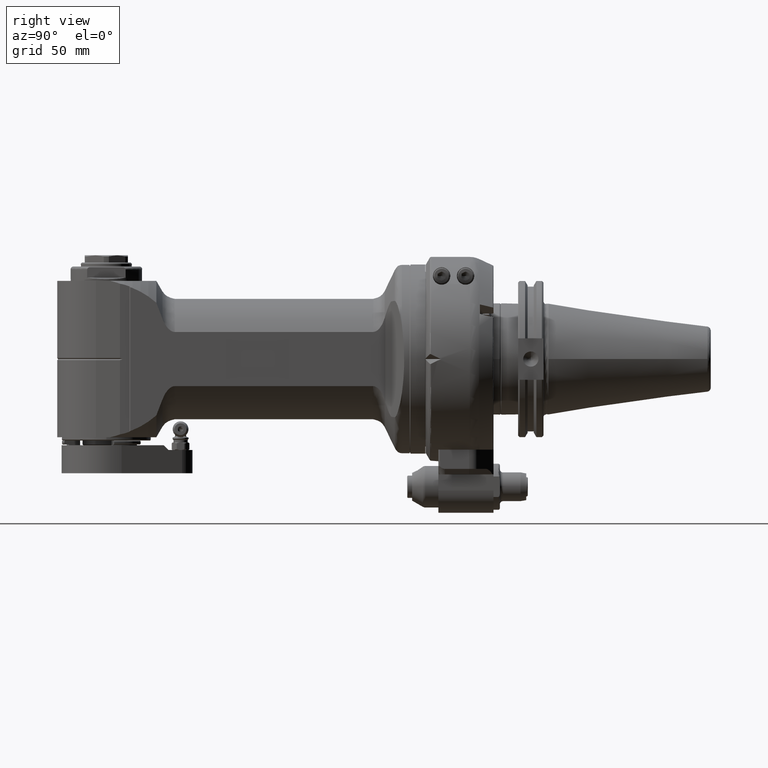
[diagram: clean part render]
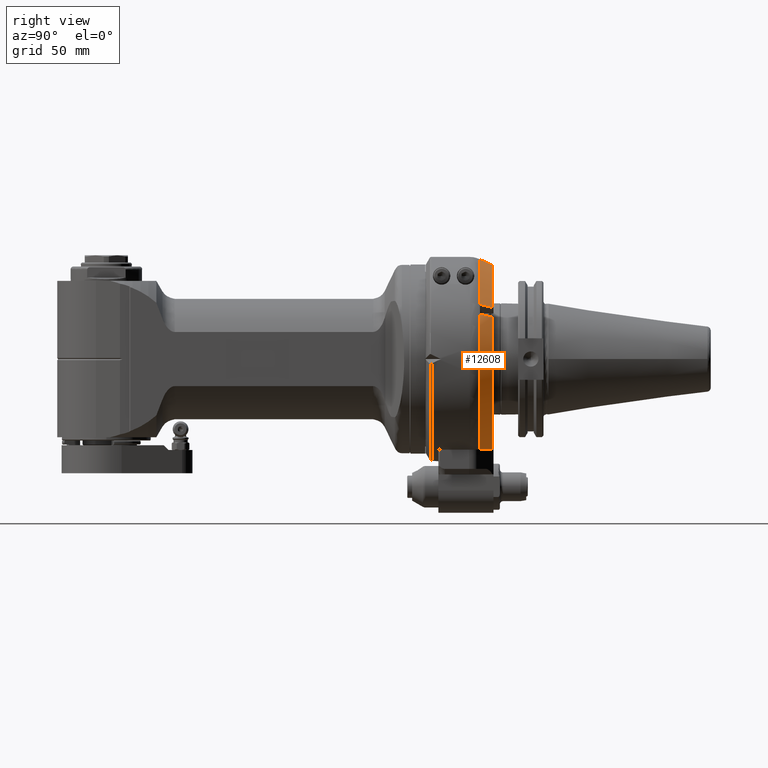
[diagram: same view with one face highlighted and labeled with its STEP entity id]
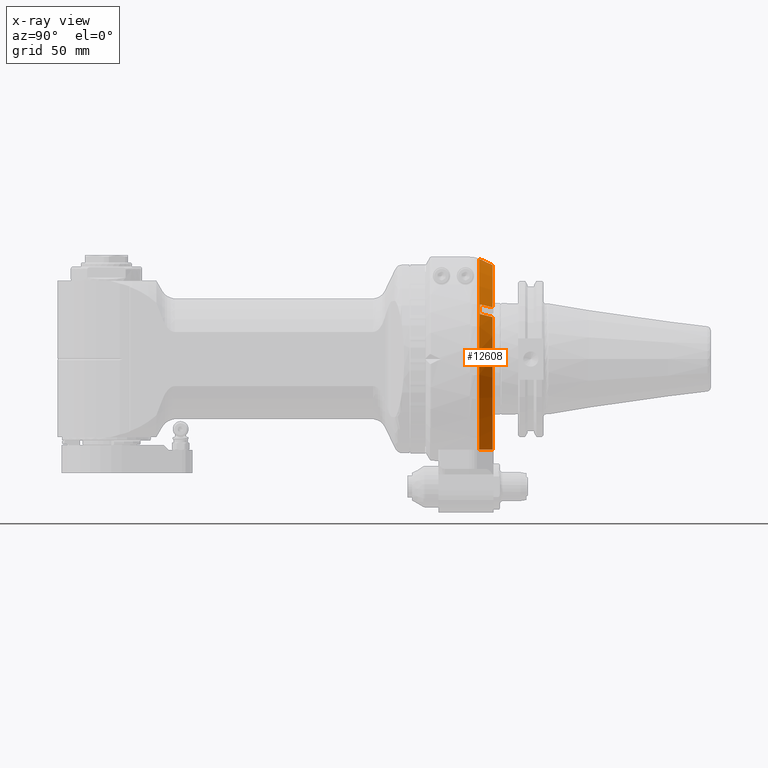
[diagram: x-ray of the same camera — body ghosted, the highlighted face saturated]
A machine part, right view. The second image highlights one B-rep face of the part: STEP entity #12608.
The next image is the same camera in x-ray: the body ghosted, the highlighted face saturated — about 0% of this face is hidden behind the body in this view.
In plain terms, the highlighted conical surface has half-angle 25 deg.
Its self-contained STEP definition (entity closure, byte-faithful):
#50=CONICAL_SURFACE('',#13469,60.72877327237,0.436332312998582);
#271=B_SPLINE_CURVE_WITH_KNOTS('',3,(#18996,#18997,#18998,#18999,#19000,
#19001,#19002,#19003,#19004,#19005),.UNSPECIFIED.,.F.,.F.,(4,3,3,4),(9.90888817221963E-6,
0.3333333333333,0.6666666666667,1.),.UNSPECIFIED.);
#272=B_SPLINE_CURVE_WITH_KNOTS('',3,(#19009,#19010,#19011,#19012,#19013,
#19014,#19015,#19016,#19017,#19018),.UNSPECIFIED.,.F.,.F.,(4,3,3,4),(0.,
0.3333333333333,0.6666666666667,0.999990373845162),.UNSPECIFIED.);
#273=B_SPLINE_CURVE_WITH_KNOTS('',3,(#19021,#19022,#19023,#19024,#19025,
#19026,#19027,#19028,#19029,#19030),.UNSPECIFIED.,.F.,.F.,(4,3,3,4),(1.66554869588638E-6,
0.3333333333333,0.6666666666667,1.),.UNSPECIFIED.);
#825=CIRCLE('',#13468,62.68830901851);
#826=CIRCLE('',#13470,58.76923752623);
#827=CIRCLE('',#13471,62.46361509432);
#828=CIRCLE('',#13472,58.76923752623);
#1525=FACE_OUTER_BOUND('',#2315,.T.);
#2315=EDGE_LOOP('',(#8398,#8399,#8400,#8401,#8402,#8403,#8404,#8405));
#3207=(
BOUNDED_CURVE()
B_SPLINE_CURVE(2,(#18990,#18991,#18992),.UNSPECIFIED.,.F.,.F.)
B_SPLINE_CURVE_WITH_KNOTS((3,3),(0.487603386350164,2.21066280968085),
 .UNSPECIFIED.)
CURVE()
GEOMETRIC_REPRESENTATION_ITEM()
RATIONAL_B_SPLINE_CURVE((1.00692453140539,1.01790271037782,1.0200003519283))
REPRESENTATION_ITEM('')
);
#5126=VERTEX_POINT('',#18945);
#5127=VERTEX_POINT('',#18946);
#5128=VERTEX_POINT('',#18989);
#5129=VERTEX_POINT('',#18993);
#5130=VERTEX_POINT('',#18995);
#5131=VERTEX_POINT('',#19006);
#5132=VERTEX_POINT('',#19008);
#5133=VERTEX_POINT('',#19019);
#6420=EDGE_CURVE('',#5126,#5127,#825,.T.);
#6424=EDGE_CURVE('',#5128,#5126,#3207,.T.);
#6425=EDGE_CURVE('',#5129,#5128,#826,.T.);
#6426=EDGE_CURVE('',#5129,#5130,#271,.T.);
#6427=EDGE_CURVE('',#5131,#5130,#827,.T.);
#6428=EDGE_CURVE('',#5131,#5132,#272,.T.);
#6429=EDGE_CURVE('',#5133,#5132,#828,.T.);
#6430=EDGE_CURVE('',#5133,#5127,#273,.T.);
#8398=ORIENTED_EDGE('',*,*,#6420,.F.);
#8399=ORIENTED_EDGE('',*,*,#6424,.F.);
#8400=ORIENTED_EDGE('',*,*,#6425,.F.);
#8401=ORIENTED_EDGE('',*,*,#6426,.T.);
#8402=ORIENTED_EDGE('',*,*,#6427,.F.);
#8403=ORIENTED_EDGE('',*,*,#6428,.T.);
#8404=ORIENTED_EDGE('',*,*,#6429,.F.);
#8405=ORIENTED_EDGE('',*,*,#6430,.T.);
#12608=ADVANCED_FACE('',(#1525),#50,.T.);
#13468=AXIS2_PLACEMENT_3D('',#18947,#15014,#15015);
#13469=AXIS2_PLACEMENT_3D('',#18988,#15016,#15017);
#13470=AXIS2_PLACEMENT_3D('',#18994,#15018,#15019);
#13471=AXIS2_PLACEMENT_3D('',#19007,#15020,#15021);
#13472=AXIS2_PLACEMENT_3D('',#19020,#15022,#15023);
#15014=DIRECTION('center_axis',(0.,-1.,0.));
#15015=DIRECTION('ref_axis',(0.424831454853905,0.,-0.905272464491611));
#15016=DIRECTION('center_axis',(0.,-1.,0.));
#15017=DIRECTION('ref_axis',(0.,0.,1.));
#15018=DIRECTION('center_axis',(0.,1.,0.));
#15019=DIRECTION('ref_axis',(0.894265716161126,0.,0.447536399523913));
#15020=DIRECTION('center_axis',(0.,1.,0.));
#15021=DIRECTION('ref_axis',(0.836648514801896,0.,0.547740141563298));
#15022=DIRECTION('center_axis',(0.,1.,0.));
#15023=DIRECTION('ref_axis',(0.025523554657049,0.,0.99967422101286));
#18945=CARTESIAN_POINT('',(26.63196552267,33.5181420938,-56.75));
#18946=CARTESIAN_POINT('',(1.49999987294151,33.5181468911745,62.6703582843571));
#18947=CARTESIAN_POINT('Origin',(0.,33.5181420938,0.));
#18988=CARTESIAN_POINT('Origin',(0.,37.72038006238,0.));
#18989=CARTESIAN_POINT('',(15.27287724741,41.92261803097,-56.75));
#18990=CARTESIAN_POINT('Ctrl Pts',(15.272877247407,41.9226180309645,-56.75));
#18991=CARTESIAN_POINT('Ctrl Pts',(20.7691594950968,38.8594749470035,-56.75));
#18992=CARTESIAN_POINT('Ctrl Pts',(26.6319655225192,33.518142093926,-56.75));
#18993=CARTESIAN_POINT('',(52.5553142880574,41.9226180618413,26.3013729669792));
#18994=CARTESIAN_POINT('Origin',(0.,41.92261803097,0.));
#18995=CARTESIAN_POINT('',(55.76009079782,33.99999976923,28.15165154783));
#18996=CARTESIAN_POINT('Ctrl Pts',(52.5553143139194,41.9226180758503,26.301372982161));
#18997=CARTESIAN_POINT('Ctrl Pts',(52.9114744831261,41.0422371498281,26.5070021517272));
#18998=CARTESIAN_POINT('Ctrl Pts',(53.26756227187,40.1620018949492,26.7125895324136));
#18999=CARTESIAN_POINT('Ctrl Pts',(53.6236453074315,39.2817478027927,26.9181741688489));
#19000=CARTESIAN_POINT('Ctrl Pts',(53.9797389284688,38.4014675428401,27.1237649168115));
#19001=CARTESIAN_POINT('Ctrl Pts',(54.3358277960411,37.5211684444899,27.3293529203599));
#19002=CARTESIAN_POINT('Ctrl Pts',(54.6919029398986,36.6408743966448,27.5349330005177));
#19003=CARTESIAN_POINT('Ctrl Pts',(55.0479780837559,35.7605803487999,27.7405130806755));
#19004=CARTESIAN_POINT('Ctrl Pts',(55.4040395038984,34.88029135146,27.9460852374428));
#19005=CARTESIAN_POINT('Ctrl Pts',(55.7600907978184,33.99999976923,28.1516515478328));
#19006=CARTESIAN_POINT('',(52.26009079782,33.99999976923,34.21382937432));
#19007=CARTESIAN_POINT('Origin',(0.,33.99999976923,0.));
#19008=CARTESIAN_POINT('',(49.0553142877506,41.922618060959,32.3635507937782));
#19009=CARTESIAN_POINT('Ctrl Pts',(52.2600907978213,33.99999976923,34.2138293743178));
#19010=CARTESIAN_POINT('Ctrl Pts',(51.9040395039013,34.88029135147,34.0082630639277));
#19011=CARTESIAN_POINT('Ctrl Pts',(51.5479780534364,35.7605804235349,33.8026908896536));
#19012=CARTESIAN_POINT('Ctrl Pts',(51.1919029399,36.6408743966523,33.5971108270015));
#19013=CARTESIAN_POINT('Ctrl Pts',(50.8358278263635,37.5211683697699,33.3915307643494));
#19014=CARTESIAN_POINT('Ctrl Pts',(50.4797390497557,38.4014672439401,33.1859428133193));
#19015=CARTESIAN_POINT('Ctrl Pts',(50.1236453074333,39.2817478028002,32.9803519953327));
#19016=CARTESIAN_POINT('Ctrl Pts',(49.7675618485517,40.1620029405092,32.7747671144933));
#19017=CARTESIAN_POINT('Ctrl Pts',(49.4114734242423,41.0422397639661,32.5691793668629));
#19018=CARTESIAN_POINT('Ctrl Pts',(49.0553143130804,41.9226180745656,32.363550808159));
#19019=CARTESIAN_POINT('',(1.49999984619797,41.922618035418,58.7500917420737));
#19020=CARTESIAN_POINT('Origin',(0.,41.92261803097,0.));
#19021=CARTESIAN_POINT('Ctrl Pts',(1.499999846154,41.9226180358762,58.7500917430561));
#19022=CARTESIAN_POINT('Ctrl Pts',(1.499999846154,40.988771374137,59.1856935028463));
#19023=CARTESIAN_POINT('Ctrl Pts',(1.499999846154,40.0549503420749,59.6212801455947));
#19024=CARTESIAN_POINT('Ctrl Pts',(1.499999846154,39.1211265734244,60.0568651160765));
#19025=CARTESIAN_POINT('Ctrl Pts',(1.499999846154,38.1872981387634,60.4924522630333));
#19026=CARTESIAN_POINT('Ctrl Pts',(1.499999846154,37.2534669674866,60.9280377377067));
#19027=CARTESIAN_POINT('Ctrl Pts',(1.499999846154,36.3196344528431,61.3636210726185));
#19028=CARTESIAN_POINT('Ctrl Pts',(1.499999846154,35.3858019381999,61.79920440753));
#19029=CARTESIAN_POINT('Ctrl Pts',(1.499999846154,34.45196808019,62.23478560268));
#19030=CARTESIAN_POINT('Ctrl Pts',(1.499999846154,33.51815168776,62.67035604739));